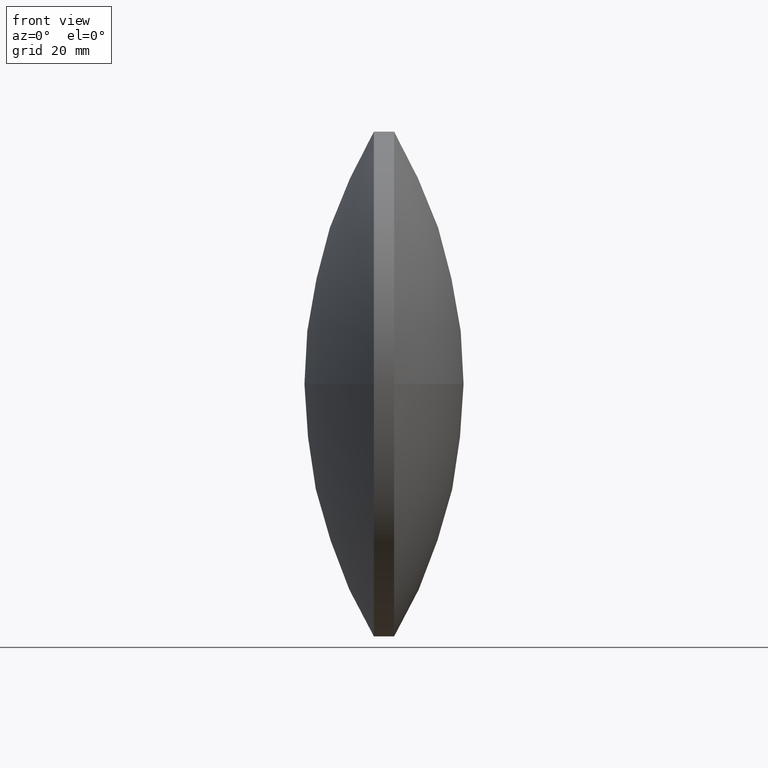
[diagram: clean part render]
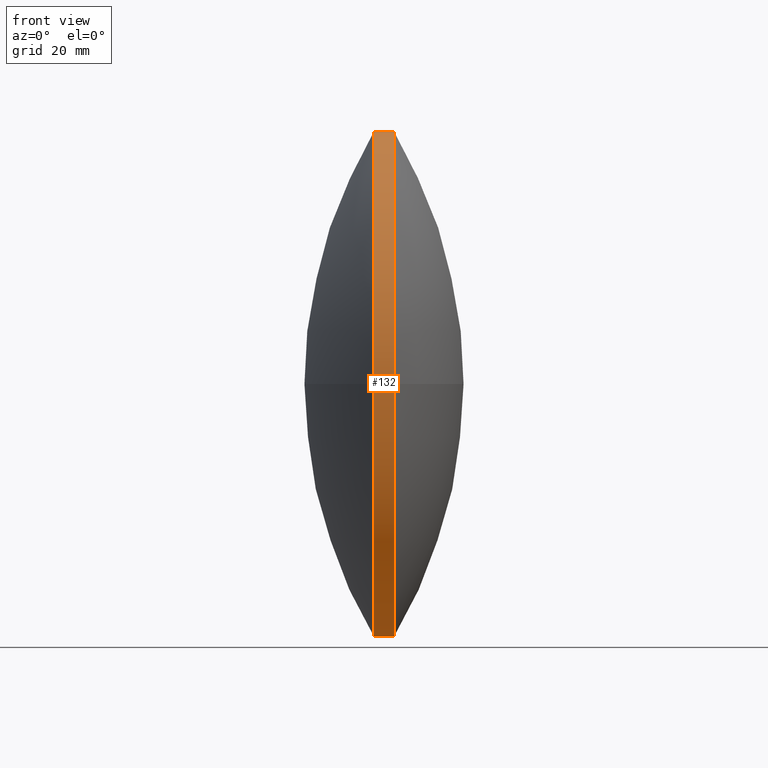
[diagram: same view with one face highlighted and labeled with its STEP entity id]
A machine part, front view. The second image highlights one B-rep face of the part: STEP entity #132.
In plain terms, the highlighted cylindrical surface (partial cylindrical patch) has radius 50 mm, axis along (-1, -0, -0).
Its self-contained STEP definition (entity closure, byte-faithful):
#13 = FACE_OUTER_BOUND ( 'NONE', #16, .T. ) ;
#16 = EDGE_LOOP ( 'NONE', ( #82, #70, #63, #340, #168, #270 ) ) ;
#17 = EDGE_CURVE ( 'NONE', #214, #304, #185, .T. ) ;
#19 = VERTEX_POINT ( 'NONE', #103 ) ;
#25 = AXIS2_PLACEMENT_3D ( 'NONE', #41, #285, #342 ) ;
#29 = CARTESIAN_POINT ( 'NONE',  ( 338.3865896640227200, 191.4020197763163700, 0.0000000000000000000 ) ) ;
#31 = DIRECTION ( 'NONE',  ( -1.000000000000000000, -0.0000000000000000000, -0.0000000000000000000 ) ) ;
#32 = CARTESIAN_POINT ( 'NONE',  ( 315.8819104246255200, 191.4020197763163700, 49.99999999999951700 ) ) ;
#35 = DIRECTION ( 'NONE',  ( 0.0000000000000000000, 0.0000000000000000000, 1.000000000000000000 ) ) ;
#41 = CARTESIAN_POINT ( 'NONE',  ( 342.3865896640226700, 191.4020197763163700, 0.0000000000000000000 ) ) ;
#55 = CIRCLE ( 'NONE', #145, 49.99999999999951700 ) ;
#57 = EDGE_CURVE ( 'NONE', #229, #19, #55, .T. ) ;
#63 = ORIENTED_EDGE ( 'NONE', *, *, #248, .T. ) ;
#64 = CARTESIAN_POINT ( 'NONE',  ( 342.3865896640226700, 191.4020197763163700, -49.99999999999951700 ) ) ;
#70 = ORIENTED_EDGE ( 'NONE', *, *, #177, .T. ) ;
#73 = DIRECTION ( 'NONE',  ( -1.000000000000000000, -0.0000000000000000000, -0.0000000000000000000 ) ) ;
#77 = CIRCLE ( 'NONE', #200, 49.99999999999951700 ) ;
#81 = DIRECTION ( 'NONE',  ( -1.000000000000000000, -0.0000000000000000000, -0.0000000000000000000 ) ) ;
#82 = ORIENTED_EDGE ( 'NONE', *, *, #17, .F. ) ;
#87 = DIRECTION ( 'NONE',  ( -1.000000000000000000, -0.0000000000000000000, -0.0000000000000000000 ) ) ;
#90 = VECTOR ( 'NONE', #31, 1000.000000000000000 ) ;
#91 = CARTESIAN_POINT ( 'NONE',  ( 342.3865896640226700, 191.4020197763163700, 0.0000000000000000000 ) ) ;
#96 = AXIS2_PLACEMENT_3D ( 'NONE', #91, #327, #123 ) ;
#103 = CARTESIAN_POINT ( 'NONE',  ( 338.3865896640227200, 191.4020197763163700, 49.99999999999951700 ) ) ;
#111 = CARTESIAN_POINT ( 'NONE',  ( 315.8819104246255200, 191.4020197763163700, 0.0000000000000000000 ) ) ;
#113 = DIRECTION ( 'NONE',  ( 0.0000000000000000000, 0.0000000000000000000, 1.000000000000000000 ) ) ;
#117 = CARTESIAN_POINT ( 'NONE',  ( 338.3865896640227200, 141.4020197763167300, -6.123233995736697500E-015 ) ) ;
#119 = DIRECTION ( 'NONE',  ( -1.000000000000000000, -0.0000000000000000000, -0.0000000000000000000 ) ) ;
#123 = DIRECTION ( 'NONE',  ( 0.0000000000000000000, 0.0000000000000000000, 1.000000000000000000 ) ) ;
#128 = VERTEX_POINT ( 'NONE', #189 ) ;
#129 = CARTESIAN_POINT ( 'NONE',  ( 315.8819104246255200, 191.4020197763163700, -49.99999999999951700 ) ) ;
#132 = ADVANCED_FACE ( 'NONE', ( #13 ), #263, .T. ) ;
#133 = VERTEX_POINT ( 'NONE', #294 ) ;
#139 = CARTESIAN_POINT ( 'NONE',  ( 338.3865896640227200, 191.4020197763163700, 0.0000000000000000000 ) ) ;
#144 = VECTOR ( 'NONE', #81, 1000.000000000000000 ) ;
#145 = AXIS2_PLACEMENT_3D ( 'NONE', #29, #73, #184 ) ;
#168 = ORIENTED_EDGE ( 'NONE', *, *, #57, .F. ) ;
#172 = AXIS2_PLACEMENT_3D ( 'NONE', #111, #87, #113 ) ;
#177 = EDGE_CURVE ( 'NONE', #214, #133, #256, .T. ) ;
#184 = DIRECTION ( 'NONE',  ( 0.0000000000000000000, 0.0000000000000000000, 1.000000000000000000 ) ) ;
#185 = LINE ( 'NONE', #129, #144 ) ;
#189 = CARTESIAN_POINT ( 'NONE',  ( 342.3865896640226700, 191.4020197763163700, 49.99999999999951700 ) ) ;
#200 = AXIS2_PLACEMENT_3D ( 'NONE', #139, #119, #35 ) ;
#214 = VERTEX_POINT ( 'NONE', #64 ) ;
#229 = VERTEX_POINT ( 'NONE', #117 ) ;
#248 = EDGE_CURVE ( 'NONE', #133, #128, #269, .T. ) ;
#256 = CIRCLE ( 'NONE', #25, 49.99999999999951700 ) ;
#263 = CYLINDRICAL_SURFACE ( 'NONE', #172, 49.99999999999951700 ) ;
#266 = EDGE_CURVE ( 'NONE', #304, #229, #77, .T. ) ;
#269 = CIRCLE ( 'NONE', #96, 49.99999999999951700 ) ;
#270 = ORIENTED_EDGE ( 'NONE', *, *, #266, .F. ) ;
#285 = DIRECTION ( 'NONE',  ( -1.000000000000000000, -0.0000000000000000000, -0.0000000000000000000 ) ) ;
#294 = CARTESIAN_POINT ( 'NONE',  ( 342.3865896640226700, 141.4020197763168200, -6.123233995736706100E-015 ) ) ;
#302 = CARTESIAN_POINT ( 'NONE',  ( 338.3865896640227200, 191.4020197763163700, -49.99999999999951700 ) ) ;
#304 = VERTEX_POINT ( 'NONE', #302 ) ;
#327 = DIRECTION ( 'NONE',  ( -1.000000000000000000, -0.0000000000000000000, -0.0000000000000000000 ) ) ;
#335 = EDGE_CURVE ( 'NONE', #128, #19, #343, .T. ) ;
#340 = ORIENTED_EDGE ( 'NONE', *, *, #335, .T. ) ;
#342 = DIRECTION ( 'NONE',  ( 0.0000000000000000000, 0.0000000000000000000, 1.000000000000000000 ) ) ;
#343 = LINE ( 'NONE', #32, #90 ) ;